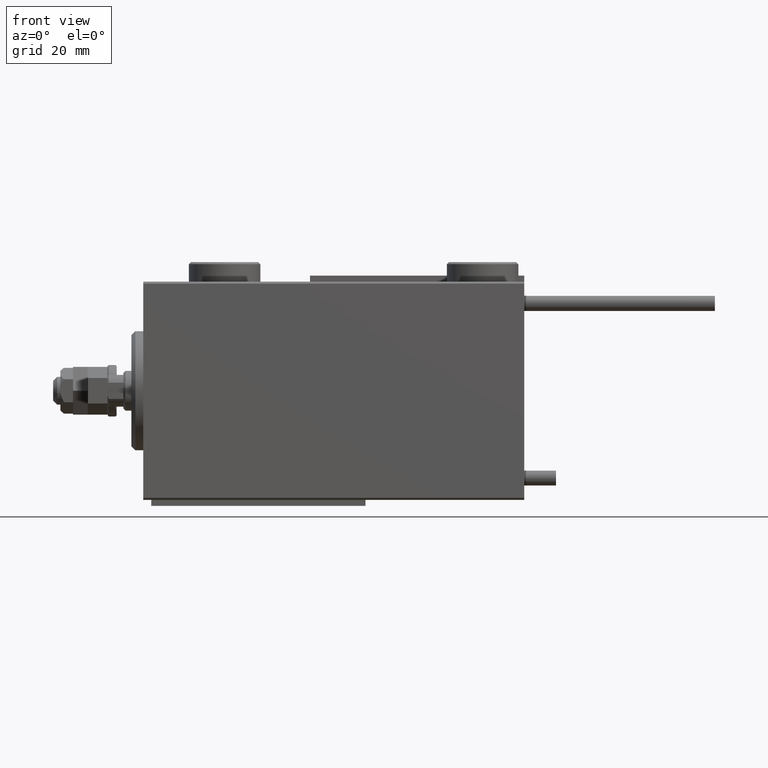
[diagram: clean part render]
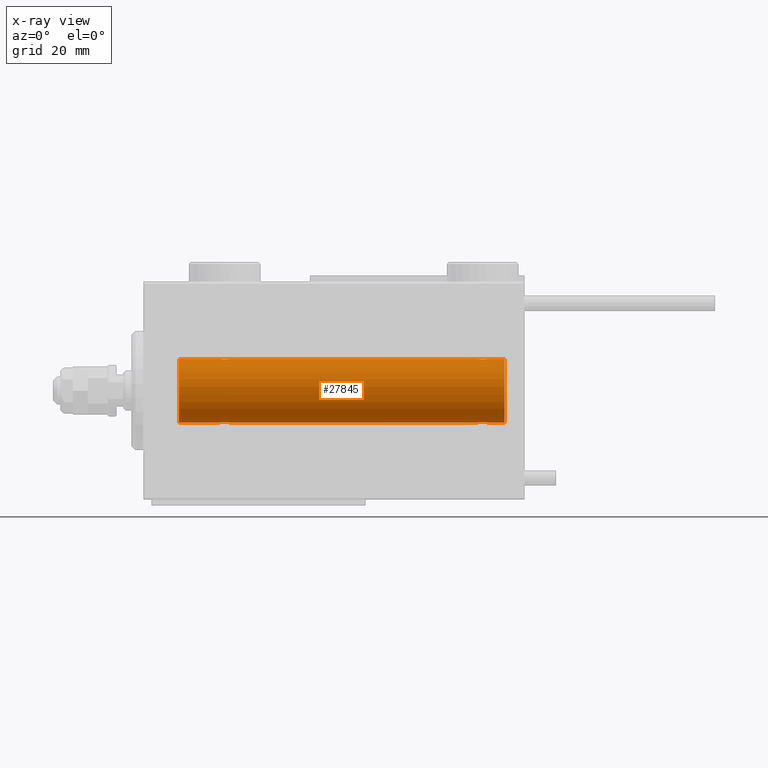
[diagram: x-ray — body ghosted, one internal face saturated and labeled with its STEP entity id]
A machine part, front view, then the same camera in x-ray: the body is ghosted and one INTERNAL B-rep face — a face not visible from any outside direction — is saturated and labeled: STEP entity #27845.
In plain terms, the highlighted cylindrical surface (edge-blend (fillet) strip) has radius 8 mm, axis along (-1, -0, -0).
Its self-contained STEP definition (entity closure, byte-faithful):
#329 = CARTESIAN_POINT ( 'NONE',  ( 19.73732994206309499, -0.9937204387496718638, 7.938174152191987076 ) ) ;
#599 = CARTESIAN_POINT ( 'NONE',  ( 91.00000000000000000, 0.000000000000000000, 7.999999999999998224 ) ) ;
#767 = ORIENTED_EDGE ( 'NONE', *, *, #31637, .F. ) ;
#1069 = ORIENTED_EDGE ( 'NONE', *, *, #40908, .T. ) ;
#1386 = CARTESIAN_POINT ( 'NONE',  ( 20.66599605016009988, -1.249894643705219854, -7.901756981264366431 ) ) ;
#1794 = CARTESIAN_POINT ( 'NONE',  ( 84.94455374345277221, -1.122809931695436525, 7.920878051565286349 ) ) ;
#1999 = CARTESIAN_POINT ( 'NONE',  ( 86.75000000000002842, 3.826567769925454797E-16, 7.999999999999998224 ) ) ;
#2065 = CARTESIAN_POINT ( 'NONE',  ( 86.75000000000000000, -0.1654128203352888959, 7.999999999999998224 ) ) ;
#2238 = CARTESIAN_POINT ( 'NONE',  ( 86.75000000000002842, 9.797173987969553159E-16, -7.999999999999998224 ) ) ;
#2355 = EDGE_CURVE ( 'NONE', #17194, #3399, #45509, .T. ) ;
#2461 = VERTEX_POINT ( 'NONE', #47876 ) ;
#2802 = DIRECTION ( 'NONE',  ( -1.000000000000000000, 0.000000000000000000, 0.000000000000000000 ) ) ;
#3399 = VERTEX_POINT ( 'NONE', #40195 ) ;
#3443 = CARTESIAN_POINT ( 'NONE',  ( 84.40834966532098349, -0.6303134207468096273, -7.976551562999471656 ) ) ;
#3536 = CARTESIAN_POINT ( 'NONE',  ( 20.33400394983990722, -1.249894643705219410, 7.901756981264364654 ) ) ;
#4031 = EDGE_LOOP ( 'NONE', ( #52408, #31051, #41341, #31995, #1069, #29919, #15510, #8700, #19103, #767, #13576, #6886 ) ) ;
#4426 = AXIS2_PLACEMENT_3D ( 'NONE', #22982, #2802, #47134 ) ;
#5246 = CARTESIAN_POINT ( 'NONE',  ( 86.71666607977188335, -0.3297258132310484924, 7.994620111903502746 ) ) ;
#5371 = CARTESIAN_POINT ( 'NONE',  ( 21.75000000000000355, 9.797173987965608855E-16, -7.999999999999998224 ) ) ;
#5511 = CARTESIAN_POINT ( 'NONE',  ( 84.40749082144731119, -0.6288424646912691429, 7.976670562295704592 ) ) ;
#6597 = CARTESIAN_POINT ( 'NONE',  ( 84.25000000000001421, -1.276489185009471567E-14, -7.999999999999998224 ) ) ;
#6886 = ORIENTED_EDGE ( 'NONE', *, *, #47832, .F. ) ;
#6908 = CARTESIAN_POINT ( 'NONE',  ( 86.05544625654727042, -1.122809931695437413, -7.920878051565288125 ) ) ;
#7695 = CARTESIAN_POINT ( 'NONE',  ( 85.17298283628258559, -1.217515856520248407, -7.907063872927295733 ) ) ;
#7783 = CARTESIAN_POINT ( 'NONE',  ( 19.25000000000000000, -4.052102368803510290E-23, 7.999999999999998224 ) ) ;
#8039 = CARTESIAN_POINT ( 'NONE',  ( 21.49841755665748622, -0.7695044314719063916, 7.963745725343518878 ) ) ;
#8566 = CARTESIAN_POINT ( 'NONE',  ( 21.75000000000000355, 9.797173987965608855E-16, -7.999999999999998224 ) ) ;
#8674 = CIRCLE ( 'NONE', #51921, 7.999999999999998224 ) ;
#8700 = ORIENTED_EDGE ( 'NONE', *, *, #22311, .F. ) ;
#9106 = CARTESIAN_POINT ( 'NONE',  ( 21.26267005793691212, -0.9937204387496720859, -7.938174152191990629 ) ) ;
#9243 = CARTESIAN_POINT ( 'NONE',  ( 85.82701716371745704, -1.217515856520240192, 7.907063872927293957 ) ) ;
#9885 = CARTESIAN_POINT ( 'NONE',  ( 21.32687899779140750, -0.9409612394163509030, -7.944680966683015377 ) ) ;
#10292 = CARTESIAN_POINT ( 'NONE',  ( 86.12943792732230008, -1.092287957405119414, 7.925333492638526600 ) ) ;
#10545 = DIRECTION ( 'NONE',  ( -1.000000000000000000, -0.000000000000000000, -0.000000000000000000 ) ) ;
#10634 = DIRECTION ( 'NONE',  ( -1.000000000000000000, -0.000000000000000000, -0.000000000000000000 ) ) ;
#11416 = CARTESIAN_POINT ( 'NONE',  ( 84.25000000000002842, -0.1654128203353027737, -7.999999999999996447 ) ) ;
#11417 = CYLINDRICAL_SURFACE ( 'NONE', #30708, 7.999999999999998224 ) ;
#11503 = CARTESIAN_POINT ( 'NONE',  ( 91.00000000000000000, 0.000000000000000000, 7.999999999999998224 ) ) ;
#11506 = CARTESIAN_POINT ( 'NONE',  ( 21.75000000000000355, 2.367508772235555199E-16, 7.999999999999998224 ) ) ;
#11676 = DIRECTION ( 'NONE',  ( 0.000000000000000000, 0.000000000000000000, 1.000000000000000000 ) ) ;
#11941 = CARTESIAN_POINT ( 'NONE',  ( 86.26267005793690146, -0.9937204387496841873, -7.938174152191988853 ) ) ;
#12267 = VERTEX_POINT ( 'NONE', #17187 ) ;
#12555 = CARTESIAN_POINT ( 'NONE',  ( 21.75000000000000711, -0.1654128203352893955, 8.000000000000001776 ) ) ;
#13137 = VECTOR ( 'NONE', #44654, 1000.000000000000000 ) ;
#13525 = DIRECTION ( 'NONE',  ( -1.000000000000000000, -0.000000000000000000, -0.000000000000000000 ) ) ;
#13576 = ORIENTED_EDGE ( 'NONE', *, *, #23696, .T. ) ;
#13600 = CARTESIAN_POINT ( 'NONE',  ( 21.71715712019488009, -0.3279446529214856687, -7.994696267489723951 ) ) ;
#14005 = CARTESIAN_POINT ( 'NONE',  ( 84.87285837165013902, -1.084361243153322940, 7.926301147147063908 ) ) ;
#14787 = LINE ( 'NONE', #26230, #21551 ) ;
#14872 = CARTESIAN_POINT ( 'NONE',  ( 86.59250917855273144, -0.6288424646912651461, -7.976670562295706368 ) ) ;
#15399 = CARTESIAN_POINT ( 'NONE',  ( 86.12714162834986098, -1.084361243153331378, -7.926301147147065684 ) ) ;
#15510 = ORIENTED_EDGE ( 'NONE', *, *, #29281, .T. ) ;
#15747 = CARTESIAN_POINT ( 'NONE',  ( 19.94455374345276155, -1.122809931695431640, 7.920878051565288125 ) ) ;
#16261 = CARTESIAN_POINT ( 'NONE',  ( 19.25000000000000355, -0.1632520343443079336, 8.000000000000000000 ) ) ;
#16271 = LINE ( 'NONE', #599, #33959 ) ;
#16767 = EDGE_CURVE ( 'NONE', #39465, #37665, #30646, .T. ) ;
#16797 = CARTESIAN_POINT ( 'NONE',  ( 19.28333392022813797, -0.3297258132310537104, -7.994620111903500970 ) ) ;
#17187 = CARTESIAN_POINT ( 'NONE',  ( 91.00000000000000000, 9.797174393178823685E-16, -7.999999999999998224 ) ) ;
#17194 = VERTEX_POINT ( 'NONE', #36828 ) ;
#17305 = DIRECTION ( 'NONE',  ( -1.000000000000000000, -0.000000000000000000, -0.000000000000000000 ) ) ;
#17312 = CARTESIAN_POINT ( 'NONE',  ( 21.75000000000000355, -0.1632520343443068511, -7.999999999999998224 ) ) ;
#17445 = CARTESIAN_POINT ( 'NONE',  ( 84.25000000000001421, -0.1632520343443091548, 7.999999999999998224 ) ) ;
#17572 = CARTESIAN_POINT ( 'NONE',  ( 21.49958686675913810, -0.7680324342712174790, -7.963892330120039276 ) ) ;
#17975 = CARTESIAN_POINT ( 'NONE',  ( 85.66440551148905058, -1.250104850332079520, 7.901723728054485640 ) ) ;
#18467 = DIRECTION ( 'NONE',  ( -1.000000000000000000, 0.000000000000000000, 0.000000000000000000 ) ) ;
#19103 = ORIENTED_EDGE ( 'NONE', *, *, #2355, .T. ) ;
#19328 = VERTEX_POINT ( 'NONE', #37541 ) ;
#19385 = CARTESIAN_POINT ( 'NONE',  ( 85.33559448851102047, -1.250104850332087736, -7.901723728054487417 ) ) ;
#19742 = CARTESIAN_POINT ( 'NONE',  ( 21.59165033467900940, -0.6303134207467964156, 7.976551562999473433 ) ) ;
#20521 = CARTESIAN_POINT ( 'NONE',  ( 20.82701716371747480, -1.217515856520238637, 7.907063872927298398 ) ) ;
#20720 = LINE ( 'NONE', #44880, #29988 ) ;
#21366 = VERTEX_POINT ( 'NONE', #8566 ) ;
#21486 = VECTOR ( 'NONE', #39562, 1000.000000000000000 ) ;
#21551 = VECTOR ( 'NONE', #10545, 1000.000000000000000 ) ;
#22244 = CARTESIAN_POINT ( 'NONE',  ( 84.28284287980513056, -0.3279446529214929407, 7.994696267489723951 ) ) ;
#22311 = EDGE_CURVE ( 'NONE', #17194, #2461, #16271, .T. ) ;
#22982 = CARTESIAN_POINT ( 'NONE',  ( 91.00000000000000000, 0.000000000000000000, 0.000000000000000000 ) ) ;
#23376 = CARTESIAN_POINT ( 'NONE',  ( 91.00000000000000000, 9.797174393178823685E-16, -7.999999999999998224 ) ) ;
#23606 = VERTEX_POINT ( 'NONE', #49081 ) ;
#23696 = EDGE_CURVE ( 'NONE', #19328, #23998, #39849, .T. ) ;
#23899 = CARTESIAN_POINT ( 'NONE',  ( 84.28333392022814508, -0.3297258132310611489, -7.994620111903500970 ) ) ;
#23990 = CARTESIAN_POINT ( 'NONE',  ( 19.87285837165014613, -1.084361243153319387, 7.926301147147063908 ) ) ;
#23998 = VERTEX_POINT ( 'NONE', #1999 ) ;
#24699 = VECTOR ( 'NONE', #26246, 1000.000000000000000 ) ;
#25322 = CARTESIAN_POINT ( 'NONE',  ( 21.12714162834985387, -1.084361243153318721, -7.926301147147063908 ) ) ;
#25457 = CARTESIAN_POINT ( 'NONE',  ( 86.26815485876451817, -0.9994562523959157341, 7.938165420771272629 ) ) ;
#25835 = CARTESIAN_POINT ( 'NONE',  ( 21.59250917855271013, -0.6288424646912625926, -7.976670562295708145 ) ) ;
#26230 = CARTESIAN_POINT ( 'NONE',  ( 91.00000000000000000, 9.797174393178823685E-16, -7.999999999999998224 ) ) ;
#26246 = DIRECTION ( 'NONE',  ( -1.000000000000000000, -0.000000000000000000, -0.000000000000000000 ) ) ;
#26332 = EDGE_CURVE ( 'NONE', #12267, #50420, #27353, .T. ) ;
#27353 = CIRCLE ( 'NONE', #4426, 7.999999999999998224 ) ;
#27642 = CARTESIAN_POINT ( 'NONE',  ( 91.00000000000000000, 0.000000000000000000, 0.000000000000000000 ) ) ;
#27845 = ADVANCED_FACE ( 'NONE', ( #47779 ), #11417, .F. ) ;
#27898 = CARTESIAN_POINT ( 'NONE',  ( 86.75000000000001421, -0.1632520343443081834, -8.000000000000000000 ) ) ;
#28155 = CARTESIAN_POINT ( 'NONE',  ( 84.87056207267774255, -1.092287957405127408, -7.925333492638528377 ) ) ;
#29056 = CARTESIAN_POINT ( 'NONE',  ( 19.73184514123549249, -0.9994562523959139577, -7.938165420771276182 ) ) ;
#29281 = EDGE_CURVE ( 'NONE', #46820, #2461, #8674, .T. ) ;
#29568 = CARTESIAN_POINT ( 'NONE',  ( 21.05544625654724200, -1.122809931695431640, -7.920878051565290789 ) ) ;
#29703 = CARTESIAN_POINT ( 'NONE',  ( 86.49841755665750043, -0.7695044314719109435, 7.963745725343518878 ) ) ;
#29919 = ORIENTED_EDGE ( 'NONE', *, *, #45487, .T. ) ;
#29988 = VECTOR ( 'NONE', #13525, 1000.000000000000000 ) ;
#30646 = B_SPLINE_CURVE_WITH_KNOTS ( 'NONE', 3,
 ( #31871, #27898, #44066, #14872, #48302, #39834, #11941, #15399, #6908, #36110, #39303, #19385, #7695, #28155, #31347, #35054, #3443, #23899, #11416, #40095 ),
 .UNSPECIFIED., .F., .F.,
 ( 4, 2, 2, 2, 2, 2, 2, 2, 2, 4 ),
 ( 0.003914068143704947829, 0.004403205918210036963, 0.004892343692715126965, 0.005136912579967671533, 0.005381481467220216100, 0.005870619241725345133, 0.006359757016230472432, 0.006848894790735599730, 0.007338032565240728763, 0.007827170339745857797 ),
 .UNSPECIFIED. ) ;
#30708 = AXIS2_PLACEMENT_3D ( 'NONE', #27642, #10634, #11676 ) ;
#31051 = ORIENTED_EDGE ( 'NONE', *, *, #36059, .T. ) ;
#31347 = CARTESIAN_POINT ( 'NONE',  ( 84.73184514123553868, -0.9994562523959246159, -7.938165420771276182 ) ) ;
#31637 = EDGE_CURVE ( 'NONE', #19328, #3399, #20720, .T. ) ;
#31871 = CARTESIAN_POINT ( 'NONE',  ( 86.75000000000002842, 9.797173987969553159E-16, -7.999999999999998224 ) ) ;
#31960 = CARTESIAN_POINT ( 'NONE',  ( 21.26815485876451461, -0.9994562523959116263, 7.938165420771274405 ) ) ;
#31995 = ORIENTED_EDGE ( 'NONE', *, *, #32999, .T. ) ;
#32481 = CARTESIAN_POINT ( 'NONE',  ( 19.67312100220859605, -0.9409612394163517912, 7.944680966683013601 ) ) ;
#32999 = EDGE_CURVE ( 'NONE', #37665, #21366, #14787, .T. ) ;
#33281 = CARTESIAN_POINT ( 'NONE',  ( 19.40834966532100481, -0.6303134207467991912, -7.976551562999473433 ) ) ;
#33415 = CARTESIAN_POINT ( 'NONE',  ( 84.73732994206314117, -0.9937204387496767488, 7.938174152191988853 ) ) ;
#33419 = LINE ( 'NONE', #50121, #24699 ) ;
#33534 = CARTESIAN_POINT ( 'NONE',  ( 20.82830666114114848, -1.217212176555599434, -7.907113222863026536 ) ) ;
#33959 = VECTOR ( 'NONE', #17305, 1000.000000000000000 ) ;
#34192 = CARTESIAN_POINT ( 'NONE',  ( 84.50041313324086900, -0.7680324342712208097, 7.963892330120033947 ) ) ;
#35054 = CARTESIAN_POINT ( 'NONE',  ( 84.50158244334252799, -0.7695044314719188261, -7.963745725343513548 ) ) ;
#35940 = CARTESIAN_POINT ( 'NONE',  ( 21.12943792732229298, -1.092287957405117194, 7.925333492638530153 ) ) ;
#36059 = EDGE_CURVE ( 'NONE', #12267, #39465, #33419, .T. ) ;
#36110 = CARTESIAN_POINT ( 'NONE',  ( 85.82830666114118401, -1.217212176555608094, -7.907113222863028312 ) ) ;
#36461 = CARTESIAN_POINT ( 'NONE',  ( 19.40749082144729343, -0.6288424646912651461, 7.976670562295706368 ) ) ;
#36828 = CARTESIAN_POINT ( 'NONE',  ( 19.25000000000000000, -4.052102368803510290E-23, 7.999999999999998224 ) ) ;
#37517 = CARTESIAN_POINT ( 'NONE',  ( 19.25000000000000711, -0.1654128203352910609, -7.999999999999998224 ) ) ;
#37541 = CARTESIAN_POINT ( 'NONE',  ( 84.25000000000001421, -4.052102368803510290E-23, 7.999999999999998224 ) ) ;
#37665 = VERTEX_POINT ( 'NONE', #6597 ) ;
#37778 = CARTESIAN_POINT ( 'NONE',  ( 20.17298283628253230, -1.217515856520239970, -7.907063872927298398 ) ) ;
#37912 = CARTESIAN_POINT ( 'NONE',  ( 85.33400394983991077, -1.249894643705222297, 7.901756981264366431 ) ) ;
#38448 = CARTESIAN_POINT ( 'NONE',  ( 86.59165033467904493, -0.6303134207467974148, 7.976551562999476985 ) ) ;
#39187 = B_SPLINE_CURVE_WITH_KNOTS ( 'NONE', 3,
 ( #5371, #17312, #13600, #25835, #17572, #9885, #9106, #25322, #29568, #33534, #1386, #41753, #37778, #42022, #29056, #49718, #33281, #16797, #37517, #41241 ),
 .UNSPECIFIED., .F., .F.,
 ( 4, 2, 2, 2, 2, 2, 2, 2, 2, 4 ),
 ( 0.003914068143704951298, 0.004403205918210062117, 0.004892343692715172936, 0.005136912579967725309, 0.005381481467220276815, 0.005870619241725390236, 0.006359757016230503657, 0.006848894790735617077, 0.007338032565240730498, 0.007827170339745843919 ),
 .UNSPECIFIED. ) ;
#39303 = CARTESIAN_POINT ( 'NONE',  ( 85.66599605016011765, -1.249894643705230068, -7.901756981264361102 ) ) ;
#39465 = VERTEX_POINT ( 'NONE', #2238 ) ;
#39562 = DIRECTION ( 'NONE',  ( -1.000000000000000000, -0.000000000000000000, -0.000000000000000000 ) ) ;
#39834 = CARTESIAN_POINT ( 'NONE',  ( 86.32687899779145368, -0.9409612394163503479, -7.944680966683013601 ) ) ;
#39849 = B_SPLINE_CURVE_WITH_KNOTS ( 'NONE', 3,
 ( #41634, #17445, #22244, #5511, #34192, #49858, #33415, #14005, #1794, #50384, #37912, #17975, #9243, #10292, #25457, #29703, #38448, #5246, #2065, #45871 ),
 .UNSPECIFIED., .F., .F.,
 ( 4, 2, 2, 2, 2, 2, 2, 2, 2, 4 ),
 ( 0.003914068143704953900, 0.004403205918210113291, 0.004892343692715272682, 0.005136912579967838066, 0.005381481467220403450, 0.005870619241725495187, 0.006359757016230586923, 0.006848894790735679527, 0.007338032565240772132, 0.007827170339745864736 ),
 .UNSPECIFIED. ) ;
#40095 = CARTESIAN_POINT ( 'NONE',  ( 84.25000000000001421, -1.276489185009471567E-14, -7.999999999999998224 ) ) ;
#40186 = CARTESIAN_POINT ( 'NONE',  ( 20.66440551148902571, -1.250104850332075523, 7.901723728054487417 ) ) ;
#40195 = CARTESIAN_POINT ( 'NONE',  ( 21.75000000000000355, 2.367508772235555199E-16, 7.999999999999998224 ) ) ;
#40908 = EDGE_CURVE ( 'NONE', #21366, #23606, #39187, .T. ) ;
#41241 = CARTESIAN_POINT ( 'NONE',  ( 19.25000000000000711, -3.107364149877583097E-15, -7.999999999999998224 ) ) ;
#41341 = ORIENTED_EDGE ( 'NONE', *, *, #16767, .T. ) ;
#41634 = CARTESIAN_POINT ( 'NONE',  ( 84.25000000000001421, -4.052102368803510290E-23, 7.999999999999998224 ) ) ;
#41753 = CARTESIAN_POINT ( 'NONE',  ( 20.33559448851098850, -1.250104850332076634, -7.901723728054487417 ) ) ;
#42022 = CARTESIAN_POINT ( 'NONE',  ( 19.87056207267771413, -1.092287957405118970, -7.925333492638526600 ) ) ;
#43866 = CARTESIAN_POINT ( 'NONE',  ( 9.000000000000007105, 9.797174393178823685E-16, -7.999999999999998224 ) ) ;
#43901 = CARTESIAN_POINT ( 'NONE',  ( 21.71666607977187269, -0.3297258132310499357, 7.994620111903506299 ) ) ;
#44066 = CARTESIAN_POINT ( 'NONE',  ( 86.71715712019492628, -0.3279446529214858908, -7.994696267489722175 ) ) ;
#44159 = CARTESIAN_POINT ( 'NONE',  ( 19.50041313324087611, -0.7680324342712182561, 7.963892330120039276 ) ) ;
#44417 = CARTESIAN_POINT ( 'NONE',  ( 20.17169333885885862, -1.217212176555599878, 7.907113222863031865 ) ) ;
#44654 = DIRECTION ( 'NONE',  ( -1.000000000000000000, -0.000000000000000000, -0.000000000000000000 ) ) ;
#44880 = CARTESIAN_POINT ( 'NONE',  ( 91.00000000000000000, 0.000000000000000000, 7.999999999999998224 ) ) ;
#45182 = LINE ( 'NONE', #48638, #13137 ) ;
#45487 = EDGE_CURVE ( 'NONE', #23606, #46820, #49855, .T. ) ;
#45509 = B_SPLINE_CURVE_WITH_KNOTS ( 'NONE', 3,
 ( #7783, #16261, #48923, #36461, #44159, #32481, #329, #23990, #15747, #44417, #3536, #40186, #20521, #35940, #31960, #8039, #19742, #43901, #12555, #11506 ),
 .UNSPECIFIED., .F., .F.,
 ( 4, 2, 2, 2, 2, 2, 2, 2, 2, 4 ),
 ( 0.003914068143704974717, 0.004403205918210087270, 0.004892343692715199824, 0.005136912579967756534, 0.005381481467220313245, 0.005870619241725426665, 0.006359757016230540086, 0.006848894790735652639, 0.007338032565240766060, 0.007827170339745878613 ),
 .UNSPECIFIED. ) ;
#45572 = DIRECTION ( 'NONE',  ( 0.000000000000000000, 0.000000000000000000, 1.000000000000000000 ) ) ;
#45871 = CARTESIAN_POINT ( 'NONE',  ( 86.75000000000002842, 3.826567769925454797E-16, 7.999999999999998224 ) ) ;
#46820 = VERTEX_POINT ( 'NONE', #43866 ) ;
#47134 = DIRECTION ( 'NONE',  ( 0.000000000000000000, 0.000000000000000000, 1.000000000000000000 ) ) ;
#47779 = FACE_OUTER_BOUND ( 'NONE', #4031, .T. ) ;
#47832 = EDGE_CURVE ( 'NONE', #50420, #23998, #45182, .T. ) ;
#47876 = CARTESIAN_POINT ( 'NONE',  ( 9.000000000000007105, 0.000000000000000000, 7.999999999999998224 ) ) ;
#48302 = CARTESIAN_POINT ( 'NONE',  ( 86.49958686675913100, -0.7680324342712141483, -7.963892330120035723 ) ) ;
#48638 = CARTESIAN_POINT ( 'NONE',  ( 91.00000000000000000, 0.000000000000000000, 7.999999999999998224 ) ) ;
#48923 = CARTESIAN_POINT ( 'NONE',  ( 19.28284287980512346, -0.3279446529214880002, 7.994696267489722175 ) ) ;
#49081 = CARTESIAN_POINT ( 'NONE',  ( 19.25000000000000711, -3.107364149877583097E-15, -7.999999999999998224 ) ) ;
#49718 = CARTESIAN_POINT ( 'NONE',  ( 19.50158244334252089, -0.7695044314719098333, -7.963745725343515325 ) ) ;
#49855 = LINE ( 'NONE', #23376, #21486 ) ;
#49858 = CARTESIAN_POINT ( 'NONE',  ( 84.67312100220863158, -0.9409612394163545668, 7.944680966683010936 ) ) ;
#50121 = CARTESIAN_POINT ( 'NONE',  ( 91.00000000000000000, 9.797174393178823685E-16, -7.999999999999998224 ) ) ;
#50343 = CARTESIAN_POINT ( 'NONE',  ( 9.000000000000007105, 0.000000000000000000, 0.000000000000000000 ) ) ;
#50384 = CARTESIAN_POINT ( 'NONE',  ( 85.17169333885887283, -1.217212176555603431, 7.907113222863028312 ) ) ;
#50420 = VERTEX_POINT ( 'NONE', #11503 ) ;
#51921 = AXIS2_PLACEMENT_3D ( 'NONE', #50343, #18467, #45572 ) ;
#52408 = ORIENTED_EDGE ( 'NONE', *, *, #26332, .F. ) ;